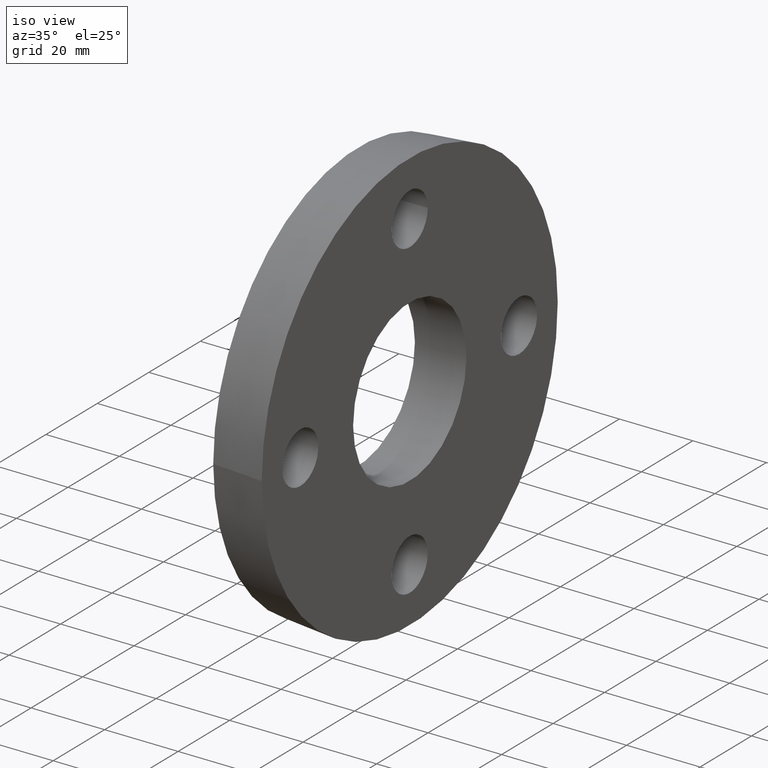
[diagram: clean part render]
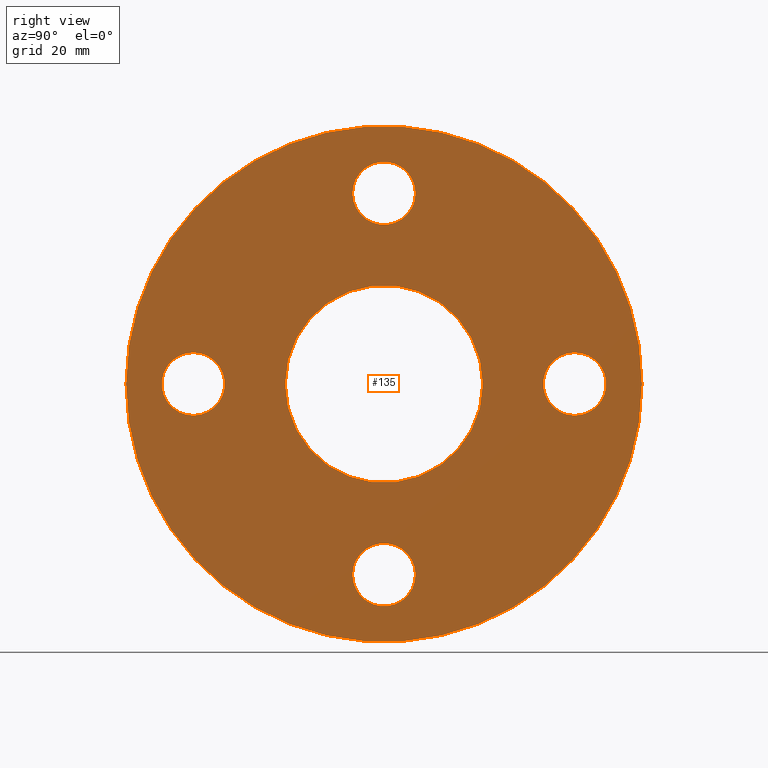
[diagram: tour spotlight — one face highlighted and labeled with its STEP entity id]
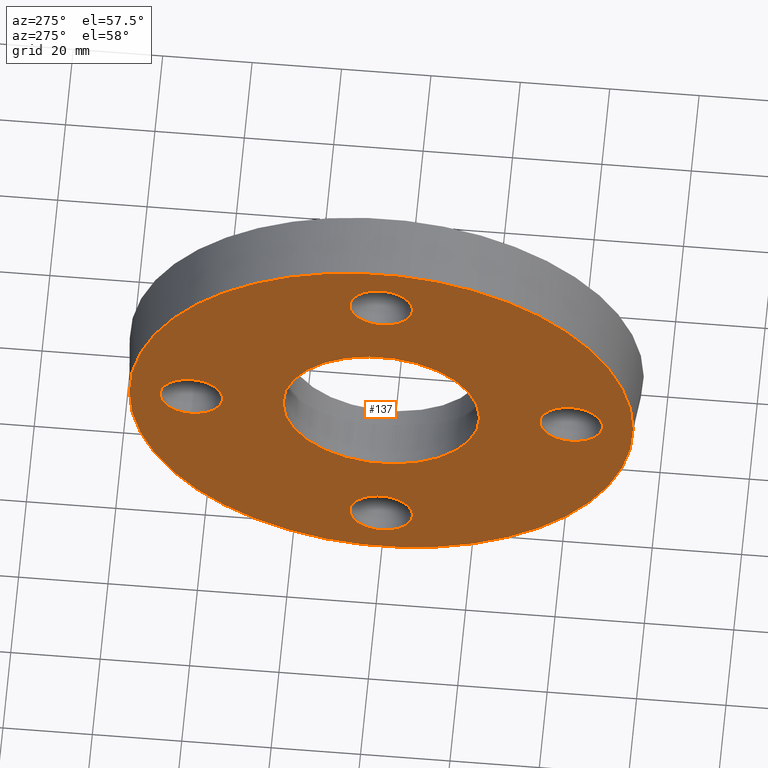
[diagram: tour spotlight — one face highlighted and labeled with its STEP entity id]
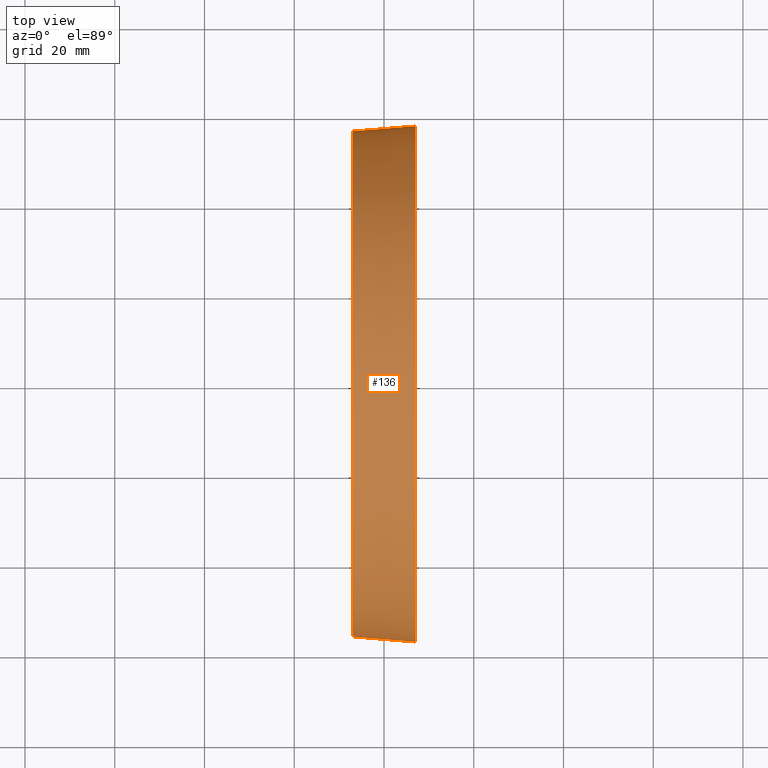
[diagram: tour spotlight — one face highlighted and labeled with its STEP entity id]
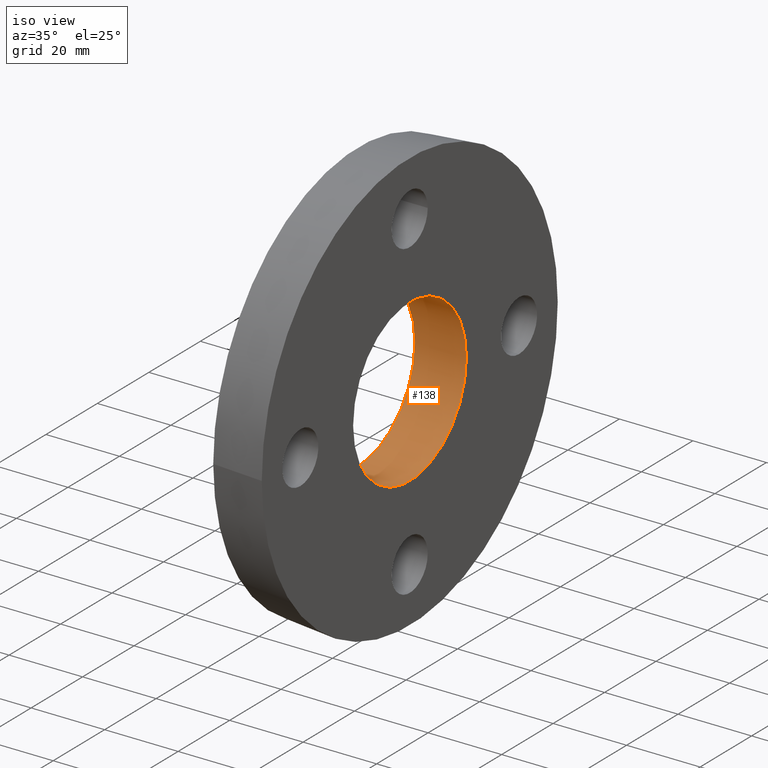
[diagram: tour spotlight — one face highlighted and labeled with its STEP entity id]
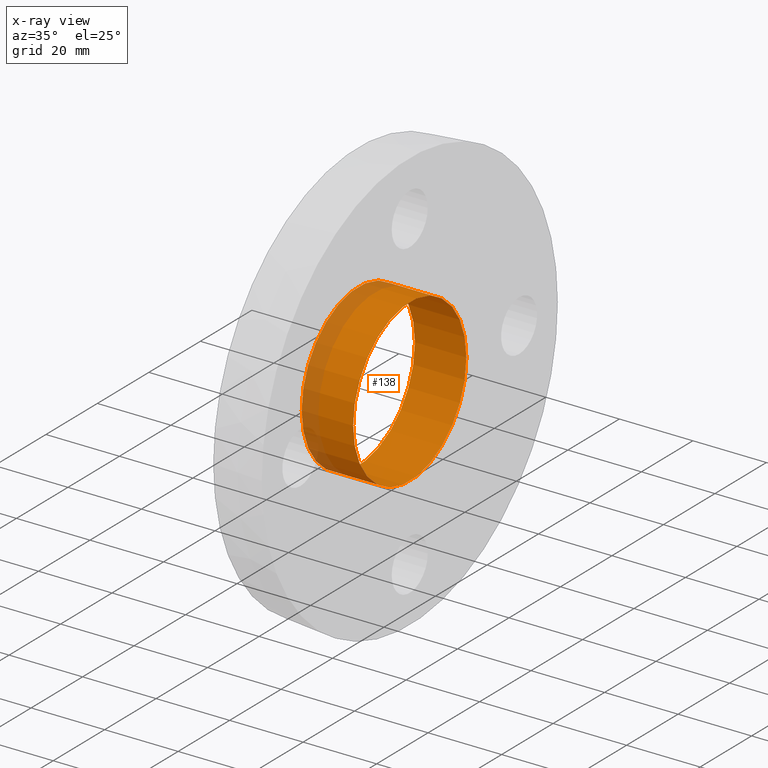
[diagram: x-ray of the same camera — body ghosted, this tour face saturated]
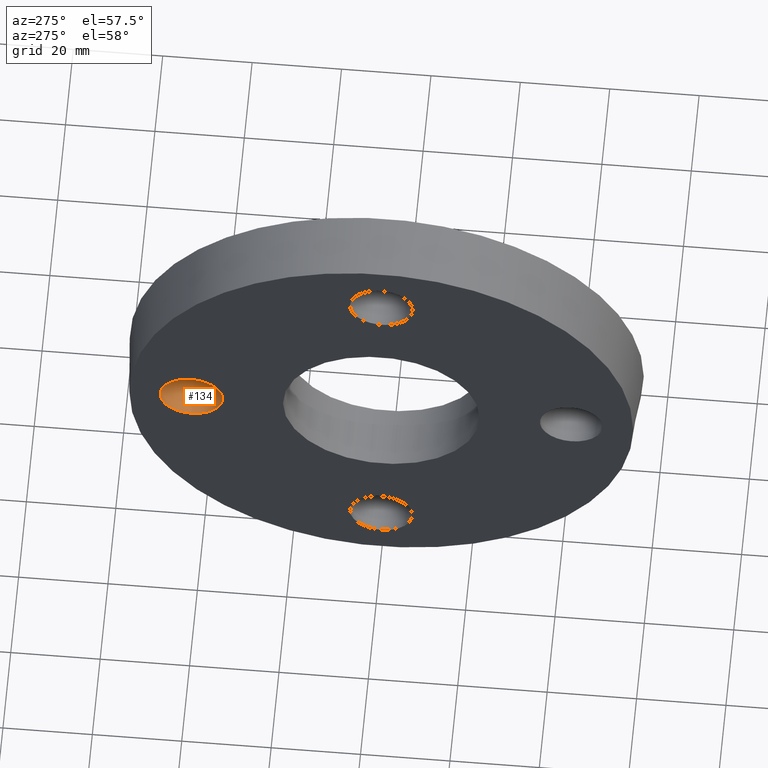
[diagram: tour spotlight — one face highlighted and labeled with its STEP entity id]
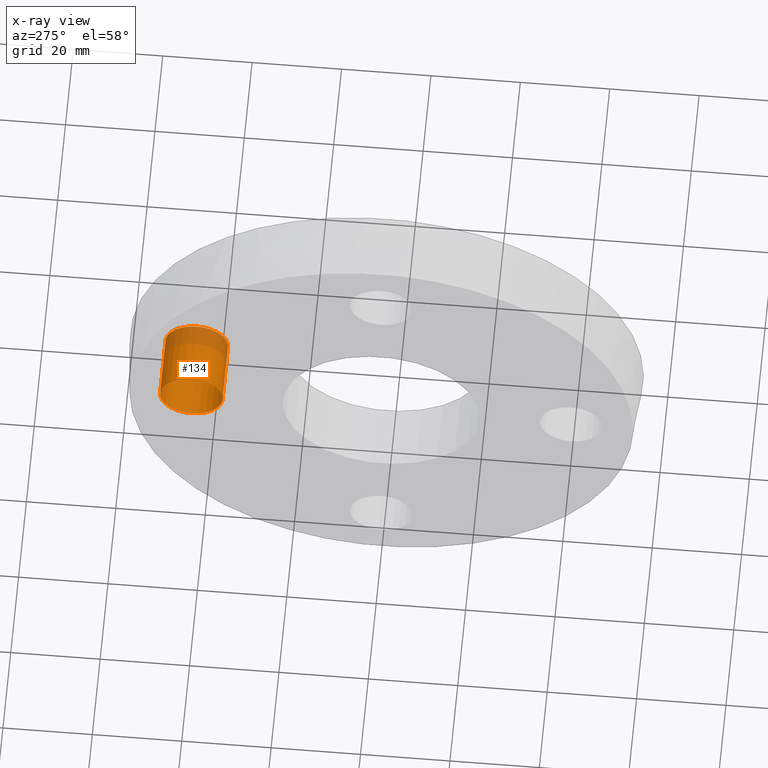
[diagram: x-ray of the same camera — body ghosted, this tour face saturated]
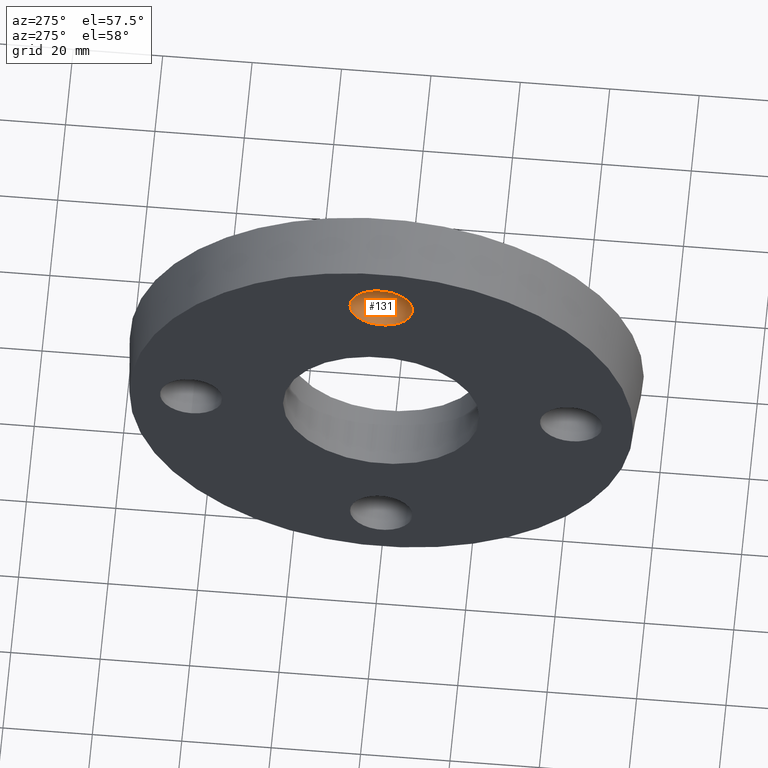
[diagram: tour spotlight — one face highlighted and labeled with its STEP entity id]
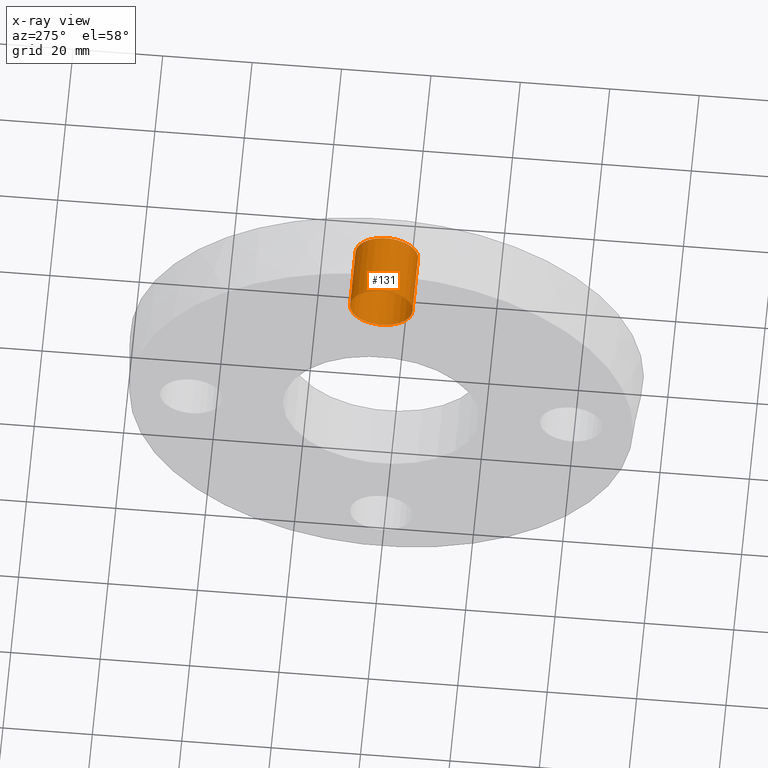
[diagram: x-ray of the same camera — body ghosted, this tour face saturated]
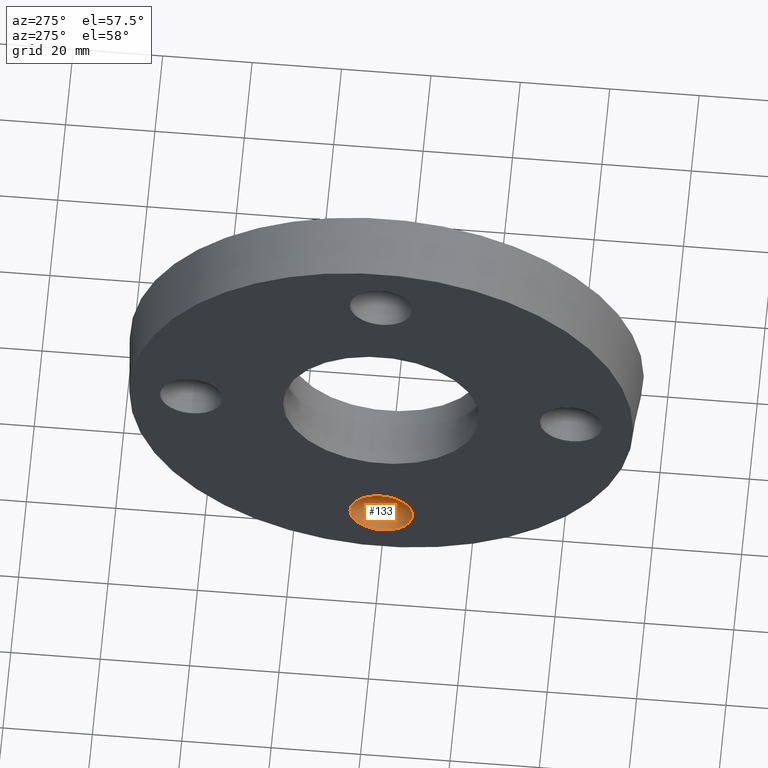
[diagram: tour spotlight — one face highlighted and labeled with its STEP entity id]
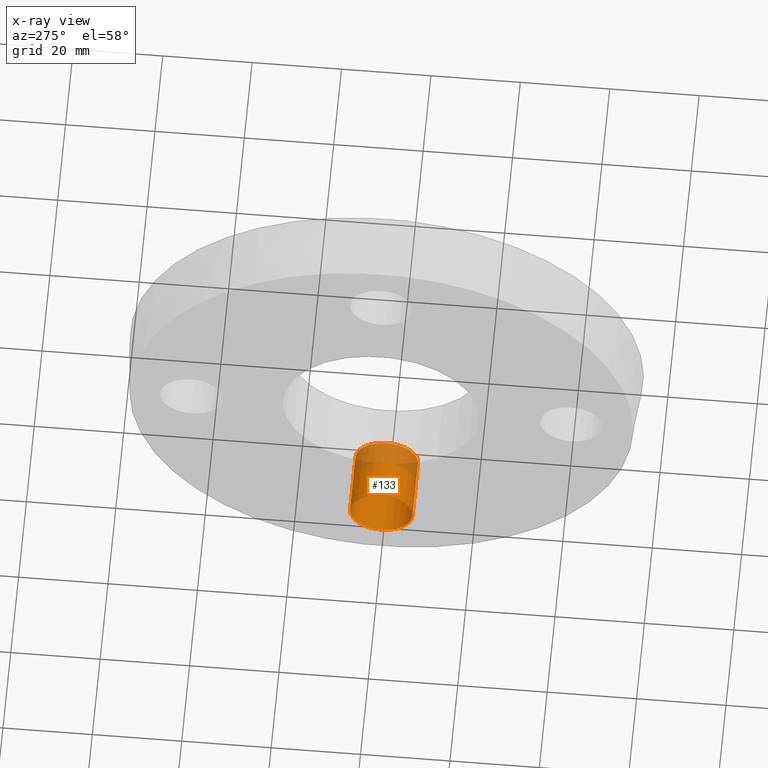
[diagram: x-ray of the same camera — body ghosted, this tour face saturated]
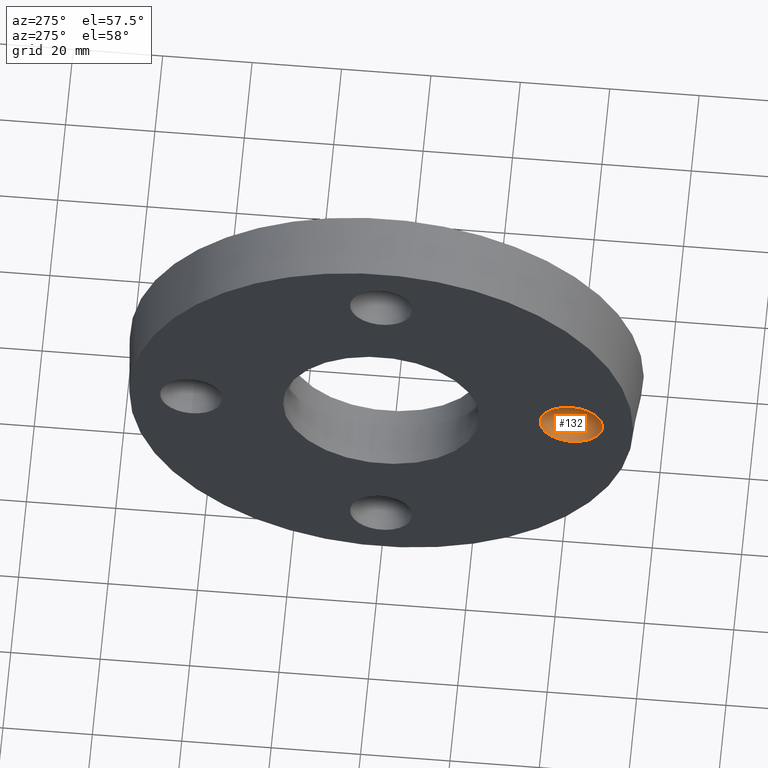
[diagram: tour spotlight — one face highlighted and labeled with its STEP entity id]
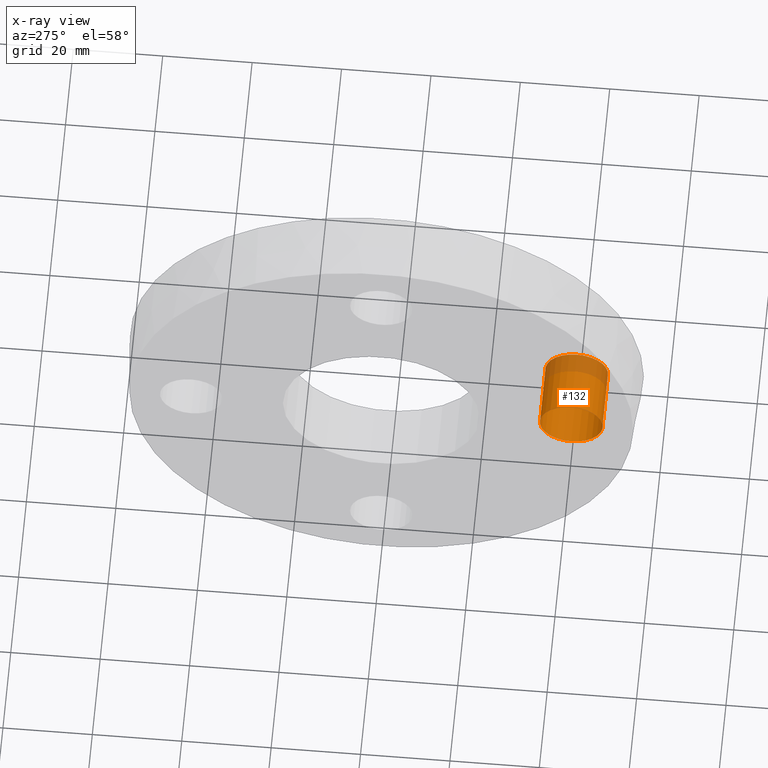
[diagram: x-ray of the same camera — body ghosted, this tour face saturated]
A machine part: a face-by-face anatomy tour. The part has 8 B-rep faces; the first image is the clean iso view, then the 8 largest visible faces are spotlighted one at a time (largest first), each with its STEP entity span.

Face 1 — right view, entity #135. In plain terms, the highlighted planar face has unit normal (1, 0, 0).
Definition (entity closure, byte-faithful):
#16=PLANE('',#153);
#22=FACE_BOUND('',#51,.T.);
#23=FACE_BOUND('',#52,.T.);
#24=FACE_BOUND('',#53,.T.);
#25=FACE_BOUND('',#54,.T.);
#26=FACE_BOUND('',#55,.T.);
#38=FACE_OUTER_BOUND('',#50,.T.);
#50=EDGE_LOOP('',(#110));
#51=EDGE_LOOP('',(#111));
#52=EDGE_LOOP('',(#112));
#53=EDGE_LOOP('',(#113));
#54=EDGE_LOOP('',(#114));
#55=EDGE_LOOP('',(#115));
#67=CIRCLE('',#143,7.);
#69=CIRCLE('',#146,7.);
#71=CIRCLE('',#149,7.);
#73=CIRCLE('',#152,7.);
#74=CIRCLE('',#154,57.5);
#75=CIRCLE('',#155,22.);
#79=VERTEX_POINT('',#207);
#81=VERTEX_POINT('',#212);
#83=VERTEX_POINT('',#217);
#85=VERTEX_POINT('',#222);
#86=VERTEX_POINT('',#225);
#87=VERTEX_POINT('',#227);
#91=EDGE_CURVE('',#79,#79,#67,.T.);
#93=EDGE_CURVE('',#81,#81,#69,.T.);
#95=EDGE_CURVE('',#83,#83,#71,.T.);
#97=EDGE_CURVE('',#85,#85,#73,.T.);
#98=EDGE_CURVE('',#86,#86,#74,.T.);
#99=EDGE_CURVE('',#87,#87,#75,.T.);
#110=ORIENTED_EDGE('',*,*,#98,.F.);
#111=ORIENTED_EDGE('',*,*,#91,.T.);
#112=ORIENTED_EDGE('',*,*,#93,.T.);
#113=ORIENTED_EDGE('',*,*,#95,.T.);
#114=ORIENTED_EDGE('',*,*,#97,.T.);
#115=ORIENTED_EDGE('',*,*,#99,.T.);
#135=ADVANCED_FACE('',(#38,#22,#23,#24,#25,#26),#16,.T.);
#143=AXIS2_PLACEMENT_3D('',#208,#167,#168);
#146=AXIS2_PLACEMENT_3D('',#213,#173,#174);
#149=AXIS2_PLACEMENT_3D('',#218,#179,#180);
#152=AXIS2_PLACEMENT_3D('',#223,#185,#186);
#153=AXIS2_PLACEMENT_3D('',#224,#187,#188);
#154=AXIS2_PLACEMENT_3D('',#226,#189,#190);
#155=AXIS2_PLACEMENT_3D('',#228,#191,#192);
#167=DIRECTION('center_axis',(-1.,0.,0.));
#168=DIRECTION('ref_axis',(0.,-1.,-1.83697019872103E-16));
#173=DIRECTION('center_axis',(-1.,0.,0.));
#174=DIRECTION('ref_axis',(0.,1.22464679914735E-16,-1.));
#179=DIRECTION('center_axis',(-1.,0.,0.));
#180=DIRECTION('ref_axis',(0.,1.,6.12323399573677E-17));
#185=DIRECTION('center_axis',(-1.,0.,0.));
#186=DIRECTION('ref_axis',(0.,0.,1.));
#187=DIRECTION('center_axis',(1.,0.,0.));
#188=DIRECTION('ref_axis',(0.,0.,-1.));
#189=DIRECTION('center_axis',(-1.,0.,0.));
#190=DIRECTION('ref_axis',(0.,0.,1.));
#191=DIRECTION('center_axis',(-1.,0.,0.));
#192=DIRECTION('ref_axis',(0.,0.,1.));
#207=CARTESIAN_POINT('',(7.,6.99999999999999,42.5));
#208=CARTESIAN_POINT('Origin',(7.,-7.80712334456438E-15,42.5));
#212=CARTESIAN_POINT('',(7.,-42.5,7.));
#213=CARTESIAN_POINT('Origin',(7.,-42.5,-5.20474889637625E-15));
#217=CARTESIAN_POINT('',(7.,-7.,-42.5));
#218=CARTESIAN_POINT('Origin',(7.,2.60237444818813E-15,-42.5));
#222=CARTESIAN_POINT('',(7.,42.5,-7.));
#223=CARTESIAN_POINT('Origin',(7.,42.5,0.));
#224=CARTESIAN_POINT('Origin',(7.,-57.5,0.));
#225=CARTESIAN_POINT('',(7.,-57.5,0.));
#226=CARTESIAN_POINT('Origin',(7.,0.,0.));
#227=CARTESIAN_POINT('',(7.,-22.,0.));
#228=CARTESIAN_POINT('Origin',(7.,0.,0.));

Face 2 — auxiliary view, entity #137. In plain terms, the highlighted planar face has unit normal (-1, 0, 0).
Definition (entity closure, byte-faithful):
#17=PLANE('',#158);
#28=FACE_BOUND('',#59,.T.);
#29=FACE_BOUND('',#60,.T.);
#30=FACE_BOUND('',#61,.T.);
#31=FACE_BOUND('',#62,.T.);
#32=FACE_BOUND('',#63,.T.);
#40=FACE_OUTER_BOUND('',#58,.T.);
#58=EDGE_LOOP('',(#118));
#59=EDGE_LOOP('',(#119));
#60=EDGE_LOOP('',(#120));
#61=EDGE_LOOP('',(#121));
#62=EDGE_LOOP('',(#122));
#63=EDGE_LOOP('',(#123));
#66=CIRCLE('',#142,7.);
#68=CIRCLE('',#145,7.);
#70=CIRCLE('',#148,7.);
#72=CIRCLE('',#151,7.);
#76=CIRCLE('',#157,56.35);
#77=CIRCLE('',#159,22.);
#78=VERTEX_POINT('',#205);
#80=VERTEX_POINT('',#210);
#82=VERTEX_POINT('',#215);
#84=VERTEX_POINT('',#220);
#88=VERTEX_POINT('',#230);
#89=VERTEX_POINT('',#233);
#90=EDGE_CURVE('',#78,#78,#66,.T.);
#92=EDGE_CURVE('',#80,#80,#68,.T.);
#94=EDGE_CURVE('',#82,#82,#70,.T.);
#96=EDGE_CURVE('',#84,#84,#72,.T.);
#100=EDGE_CURVE('',#88,#88,#76,.T.);
#101=EDGE_CURVE('',#89,#89,#77,.T.);
#118=ORIENTED_EDGE('',*,*,#100,.T.);
#119=ORIENTED_EDGE('',*,*,#90,.T.);
#120=ORIENTED_EDGE('',*,*,#92,.T.);
#121=ORIENTED_EDGE('',*,*,#94,.T.);
#122=ORIENTED_EDGE('',*,*,#96,.T.);
#123=ORIENTED_EDGE('',*,*,#101,.F.);
#137=ADVANCED_FACE('',(#40,#28,#29,#30,#31,#32),#17,.T.);
#142=AXIS2_PLACEMENT_3D('',#206,#165,#166);
#145=AXIS2_PLACEMENT_3D('',#211,#171,#172);
#148=AXIS2_PLACEMENT_3D('',#216,#177,#178);
#151=AXIS2_PLACEMENT_3D('',#221,#183,#184);
#157=AXIS2_PLACEMENT_3D('',#231,#195,#196);
#158=AXIS2_PLACEMENT_3D('',#232,#197,#198);
#159=AXIS2_PLACEMENT_3D('',#234,#199,#200);
#165=DIRECTION('center_axis',(1.,0.,0.));
#166=DIRECTION('ref_axis',(0.,-1.,-1.83697019872103E-16));
#171=DIRECTION('center_axis',(1.,0.,0.));
#172=DIRECTION('ref_axis',(0.,1.22464679914735E-16,-1.));
#177=DIRECTION('center_axis',(1.,0.,0.));
#178=DIRECTION('ref_axis',(0.,1.,6.12323399573677E-17));
#183=DIRECTION('center_axis',(1.,0.,0.));
#184=DIRECTION('ref_axis',(0.,0.,1.));
#195=DIRECTION('center_axis',(-1.,0.,0.));
#196=DIRECTION('ref_axis',(0.,0.,1.));
#197=DIRECTION('center_axis',(-1.,0.,0.));
#198=DIRECTION('ref_axis',(0.,0.,1.));
#199=DIRECTION('center_axis',(-1.,0.,0.));
#200=DIRECTION('ref_axis',(0.,0.,1.));
#205=CARTESIAN_POINT('',(-7.,6.99999999999999,42.5));
#206=CARTESIAN_POINT('Origin',(-7.,-7.80712334456438E-15,42.5));
#210=CARTESIAN_POINT('',(-7.,-42.5,7.));
#211=CARTESIAN_POINT('Origin',(-7.,-42.5,-5.20474889637625E-15));
#215=CARTESIAN_POINT('',(-7.,-7.,-42.5));
#216=CARTESIAN_POINT('Origin',(-7.,2.60237444818813E-15,-42.5));
#220=CARTESIAN_POINT('',(-7.,42.5,-7.));
#221=CARTESIAN_POINT('Origin',(-7.,42.5,0.));
#230=CARTESIAN_POINT('',(-7.,-56.35,0.));
#231=CARTESIAN_POINT('Origin',(-7.,0.,0.));
#232=CARTESIAN_POINT('Origin',(-7.,-22.,0.));
#233=CARTESIAN_POINT('',(-7.,-22.,0.));
#234=CARTESIAN_POINT('Origin',(-7.,0.,0.));

Face 3 — top view, entity #136. In plain terms, the highlighted conical surface has half-angle 4.696 deg.
Definition (entity closure, byte-faithful):
#15=CONICAL_SURFACE('',#156,56.925,4.69589619523375);
#27=FACE_BOUND('',#57,.T.);
#39=FACE_OUTER_BOUND('',#56,.T.);
#56=EDGE_LOOP('',(#116));
#57=EDGE_LOOP('',(#117));
#74=CIRCLE('',#154,57.5);
#76=CIRCLE('',#157,56.35);
#86=VERTEX_POINT('',#225);
#88=VERTEX_POINT('',#230);
#98=EDGE_CURVE('',#86,#86,#74,.T.);
#100=EDGE_CURVE('',#88,#88,#76,.T.);
#116=ORIENTED_EDGE('',*,*,#100,.F.);
#117=ORIENTED_EDGE('',*,*,#98,.T.);
#136=ADVANCED_FACE('',(#39,#27),#15,.T.);
#154=AXIS2_PLACEMENT_3D('',#226,#189,#190);
#156=AXIS2_PLACEMENT_3D('',#229,#193,#194);
#157=AXIS2_PLACEMENT_3D('',#231,#195,#196);
#189=DIRECTION('center_axis',(-1.,0.,0.));
#190=DIRECTION('ref_axis',(0.,0.,1.));
#193=DIRECTION('center_axis',(1.,0.,0.));
#194=DIRECTION('ref_axis',(0.,-1.,0.));
#195=DIRECTION('center_axis',(-1.,0.,0.));
#196=DIRECTION('ref_axis',(0.,0.,1.));
#225=CARTESIAN_POINT('',(7.,-57.5,0.));
#226=CARTESIAN_POINT('Origin',(7.,0.,0.));
#229=CARTESIAN_POINT('Origin',(1.11022302462516E-15,0.,0.));
#230=CARTESIAN_POINT('',(-7.,-56.35,0.));
#231=CARTESIAN_POINT('Origin',(-7.,0.,0.));

Face 4 — iso view, entity #138. An x-ray twin of the same camera follows (body ghosted, this face saturated) — the face is partly hidden behind the body. In plain terms, the highlighted cylindrical surface (bore or boss wall) has radius 22 mm, axis along (-1, 0, 0).
Definition (entity closure, byte-faithful):
#33=FACE_BOUND('',#65,.T.);
#41=FACE_OUTER_BOUND('',#64,.T.);
#64=EDGE_LOOP('',(#124));
#65=EDGE_LOOP('',(#125));
#75=CIRCLE('',#155,22.);
#77=CIRCLE('',#159,22.);
#87=VERTEX_POINT('',#227);
#89=VERTEX_POINT('',#233);
#99=EDGE_CURVE('',#87,#87,#75,.T.);
#101=EDGE_CURVE('',#89,#89,#77,.T.);
#124=ORIENTED_EDGE('',*,*,#99,.F.);
#125=ORIENTED_EDGE('',*,*,#101,.T.);
#130=CYLINDRICAL_SURFACE('',#160,22.);
#138=ADVANCED_FACE('',(#41,#33),#130,.F.);
#155=AXIS2_PLACEMENT_3D('',#228,#191,#192);
#159=AXIS2_PLACEMENT_3D('',#234,#199,#200);
#160=AXIS2_PLACEMENT_3D('',#235,#201,#202);
#191=DIRECTION('center_axis',(-1.,0.,0.));
#192=DIRECTION('ref_axis',(0.,0.,1.));
#199=DIRECTION('center_axis',(-1.,0.,0.));
#200=DIRECTION('ref_axis',(0.,0.,1.));
#201=DIRECTION('center_axis',(-1.,0.,0.));
#202=DIRECTION('ref_axis',(0.,-1.,0.));
#227=CARTESIAN_POINT('',(7.,-22.,0.));
#228=CARTESIAN_POINT('Origin',(7.,0.,0.));
#233=CARTESIAN_POINT('',(-7.,-22.,0.));
#234=CARTESIAN_POINT('Origin',(-7.,0.,0.));
#235=CARTESIAN_POINT('Origin',(0.,0.,0.));

Face 5 — auxiliary view, entity #134. An x-ray twin of the same camera follows (body ghosted, this face saturated) — the face is partly hidden behind the body. In plain terms, the highlighted cylindrical surface (bore or boss wall) has radius 7 mm, axis along (-1, 0, 0).
Definition (entity closure, byte-faithful):
#21=FACE_BOUND('',#49,.T.);
#37=FACE_OUTER_BOUND('',#48,.T.);
#48=EDGE_LOOP('',(#108));
#49=EDGE_LOOP('',(#109));
#72=CIRCLE('',#151,7.);
#73=CIRCLE('',#152,7.);
#84=VERTEX_POINT('',#220);
#85=VERTEX_POINT('',#222);
#96=EDGE_CURVE('',#84,#84,#72,.T.);
#97=EDGE_CURVE('',#85,#85,#73,.T.);
#108=ORIENTED_EDGE('',*,*,#96,.F.);
#109=ORIENTED_EDGE('',*,*,#97,.F.);
#129=CYLINDRICAL_SURFACE('',#150,7.);
#134=ADVANCED_FACE('',(#37,#21),#129,.F.);
#150=AXIS2_PLACEMENT_3D('',#219,#181,#182);
#151=AXIS2_PLACEMENT_3D('',#221,#183,#184);
#152=AXIS2_PLACEMENT_3D('',#223,#185,#186);
#181=DIRECTION('center_axis',(-1.,0.,0.));
#182=DIRECTION('ref_axis',(0.,0.,1.));
#183=DIRECTION('center_axis',(1.,0.,0.));
#184=DIRECTION('ref_axis',(0.,0.,1.));
#185=DIRECTION('center_axis',(-1.,0.,0.));
#186=DIRECTION('ref_axis',(0.,0.,1.));
#219=CARTESIAN_POINT('Origin',(7.,42.5,0.));
#220=CARTESIAN_POINT('',(-7.,42.5,-7.));
#221=CARTESIAN_POINT('Origin',(-7.,42.5,0.));
#222=CARTESIAN_POINT('',(7.,42.5,-7.));
#223=CARTESIAN_POINT('Origin',(7.,42.5,0.));

Face 6 — auxiliary view, entity #131. An x-ray twin of the same camera follows (body ghosted, this face saturated) — the face is partly hidden behind the body. In plain terms, the highlighted cylindrical surface (bore or boss wall) has radius 7 mm, axis along (-1, 0, 0).
Definition (entity closure, byte-faithful):
#18=FACE_BOUND('',#43,.T.);
#34=FACE_OUTER_BOUND('',#42,.T.);
#42=EDGE_LOOP('',(#102));
#43=EDGE_LOOP('',(#103));
#66=CIRCLE('',#142,7.);
#67=CIRCLE('',#143,7.);
#78=VERTEX_POINT('',#205);
#79=VERTEX_POINT('',#207);
#90=EDGE_CURVE('',#78,#78,#66,.T.);
#91=EDGE_CURVE('',#79,#79,#67,.T.);
#102=ORIENTED_EDGE('',*,*,#90,.F.);
#103=ORIENTED_EDGE('',*,*,#91,.F.);
#126=CYLINDRICAL_SURFACE('',#141,7.);
#131=ADVANCED_FACE('',(#34,#18),#126,.F.);
#141=AXIS2_PLACEMENT_3D('',#204,#163,#164);
#142=AXIS2_PLACEMENT_3D('',#206,#165,#166);
#143=AXIS2_PLACEMENT_3D('',#208,#167,#168);
#163=DIRECTION('center_axis',(-1.,0.,0.));
#164=DIRECTION('ref_axis',(0.,-1.,-1.83697019872103E-16));
#165=DIRECTION('center_axis',(1.,0.,0.));
#166=DIRECTION('ref_axis',(0.,-1.,-1.83697019872103E-16));
#167=DIRECTION('center_axis',(-1.,0.,0.));
#168=DIRECTION('ref_axis',(0.,-1.,-1.83697019872103E-16));
#204=CARTESIAN_POINT('Origin',(7.,-7.80712334456438E-15,42.5));
#205=CARTESIAN_POINT('',(-7.,6.99999999999999,42.5));
#206=CARTESIAN_POINT('Origin',(-7.,-7.80712334456438E-15,42.5));
#207=CARTESIAN_POINT('',(7.,6.99999999999999,42.5));
#208=CARTESIAN_POINT('Origin',(7.,-7.80712334456438E-15,42.5));

Face 7 — auxiliary view, entity #133. An x-ray twin of the same camera follows (body ghosted, this face saturated) — the face is partly hidden behind the body. In plain terms, the highlighted cylindrical surface (bore or boss wall) has radius 7 mm, axis along (-1, 0, 0).
Definition (entity closure, byte-faithful):
#20=FACE_BOUND('',#47,.T.);
#36=FACE_OUTER_BOUND('',#46,.T.);
#46=EDGE_LOOP('',(#106));
#47=EDGE_LOOP('',(#107));
#70=CIRCLE('',#148,7.);
#71=CIRCLE('',#149,7.);
#82=VERTEX_POINT('',#215);
#83=VERTEX_POINT('',#217);
#94=EDGE_CURVE('',#82,#82,#70,.T.);
#95=EDGE_CURVE('',#83,#83,#71,.T.);
#106=ORIENTED_EDGE('',*,*,#94,.F.);
#107=ORIENTED_EDGE('',*,*,#95,.F.);
#128=CYLINDRICAL_SURFACE('',#147,7.);
#133=ADVANCED_FACE('',(#36,#20),#128,.F.);
#147=AXIS2_PLACEMENT_3D('',#214,#175,#176);
#148=AXIS2_PLACEMENT_3D('',#216,#177,#178);
#149=AXIS2_PLACEMENT_3D('',#218,#179,#180);
#175=DIRECTION('center_axis',(-1.,0.,0.));
#176=DIRECTION('ref_axis',(0.,1.,6.12323399573677E-17));
#177=DIRECTION('center_axis',(1.,0.,0.));
#178=DIRECTION('ref_axis',(0.,1.,6.12323399573677E-17));
#179=DIRECTION('center_axis',(-1.,0.,0.));
#180=DIRECTION('ref_axis',(0.,1.,6.12323399573677E-17));
#214=CARTESIAN_POINT('Origin',(7.,2.60237444818813E-15,-42.5));
#215=CARTESIAN_POINT('',(-7.,-7.,-42.5));
#216=CARTESIAN_POINT('Origin',(-7.,2.60237444818813E-15,-42.5));
#217=CARTESIAN_POINT('',(7.,-7.,-42.5));
#218=CARTESIAN_POINT('Origin',(7.,2.60237444818813E-15,-42.5));

Face 8 — auxiliary view, entity #132. An x-ray twin of the same camera follows (body ghosted, this face saturated) — the face is partly hidden behind the body. In plain terms, the highlighted cylindrical surface (bore or boss wall) has radius 7 mm, axis along (-1, 0, 0).
Definition (entity closure, byte-faithful):
#19=FACE_BOUND('',#45,.T.);
#35=FACE_OUTER_BOUND('',#44,.T.);
#44=EDGE_LOOP('',(#104));
#45=EDGE_LOOP('',(#105));
#68=CIRCLE('',#145,7.);
#69=CIRCLE('',#146,7.);
#80=VERTEX_POINT('',#210);
#81=VERTEX_POINT('',#212);
#92=EDGE_CURVE('',#80,#80,#68,.T.);
#93=EDGE_CURVE('',#81,#81,#69,.T.);
#104=ORIENTED_EDGE('',*,*,#92,.F.);
#105=ORIENTED_EDGE('',*,*,#93,.F.);
#127=CYLINDRICAL_SURFACE('',#144,7.);
#132=ADVANCED_FACE('',(#35,#19),#127,.F.);
#144=AXIS2_PLACEMENT_3D('',#209,#169,#170);
#145=AXIS2_PLACEMENT_3D('',#211,#171,#172);
#146=AXIS2_PLACEMENT_3D('',#213,#173,#174);
#169=DIRECTION('center_axis',(-1.,0.,0.));
#170=DIRECTION('ref_axis',(0.,1.22464679914735E-16,-1.));
#171=DIRECTION('center_axis',(1.,0.,0.));
#172=DIRECTION('ref_axis',(0.,1.22464679914735E-16,-1.));
#173=DIRECTION('center_axis',(-1.,0.,0.));
#174=DIRECTION('ref_axis',(0.,1.22464679914735E-16,-1.));
#209=CARTESIAN_POINT('Origin',(7.,-42.5,-5.20474889637625E-15));
#210=CARTESIAN_POINT('',(-7.,-42.5,7.));
#211=CARTESIAN_POINT('Origin',(-7.,-42.5,-5.20474889637625E-15));
#212=CARTESIAN_POINT('',(7.,-42.5,7.));
#213=CARTESIAN_POINT('Origin',(7.,-42.5,-5.20474889637625E-15));